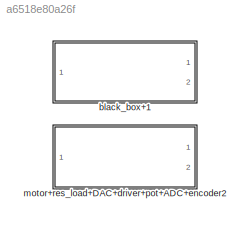
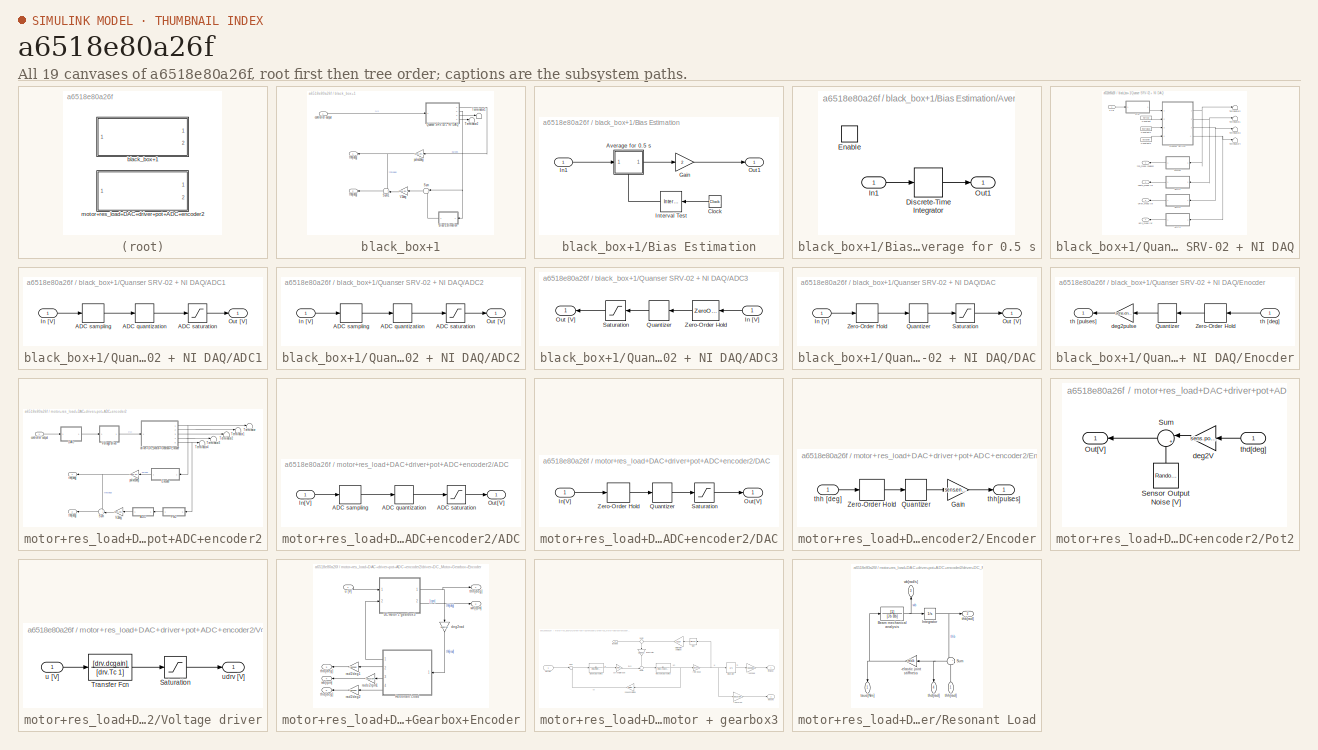
[diagram: thumbnail index - all 19 canvases of the model, root first then tree order]
MODEL slx_a6518e80a26f
KIND model
CONFIG AbsTol = auto
CONFIG EnableMultiTasking = off
CONFIG FixedStep = auto
CONFIG MaxStep = auto
CONFIG MinStep = auto
CONFIG RelTol = 1e-3
CONFIG SampleTimeConstraint = Unconstrained
CONFIG SolverName = VariableStepAuto
CONFIG StartTime = 0.0
CONFIG StopTime = 10.0
BLOCK [SubSystem] black_box+1
  Ports = [1, 2]
  RequestExecContextInheritance = off
BLOCK [SubSystem] black_box+1/Bias Estimation
  NameLocation = top
  Ports = [1, 1]
  RequestExecContextInheritance = off
BLOCK [SubSystem] black_box+1/Bias Estimation/Average for 0.5 s
  NameLocation = top
  Ports = [1, 1, 1]
  RequestExecContextInheritance = off
BLOCK [DiscreteIntegrator] black_box+1/Bias Estimation/Average for 0.5 s/Discrete-Time Integrator
  ICPrevOutput = DiscIntNeverNeededParam
  ICPrevScaledInput = DiscIntNeverNeededParam
  InitialConditionSetting = Auto
  Ports = [1, 1]
  SampleTime = Ts
BLOCK [EnablePort] black_box+1/Bias Estimation/Average for 0.5 s/Enable
  Ports = []
BLOCK [Inport] black_box+1/Bias Estimation/Average for 0.5 s/In1
BLOCK [Outport] black_box+1/Bias Estimation/Average for 0.5 s/Out1
BLOCK [Clock] black_box+1/Bias Estimation/Clock
  NameLocation = top
BLOCK [Gain] black_box+1/Bias Estimation/Gain
  Gain = 2
BLOCK [Inport] black_box+1/Bias Estimation/In1
BLOCK [Reference] black_box+1/Bias Estimation/Interval Test  REF=simulink/Logic and Bit
Operations/Interval Test
  NameLocation = top
  Ports = [1, 1]
  SourceBlock = simulink/Logic and Bit\nOperations/Interval Test
  SourceProductBaseCode = SL
  SourceType = Interval Test
BLOCK [Outport] black_box+1/Bias Estimation/Out1
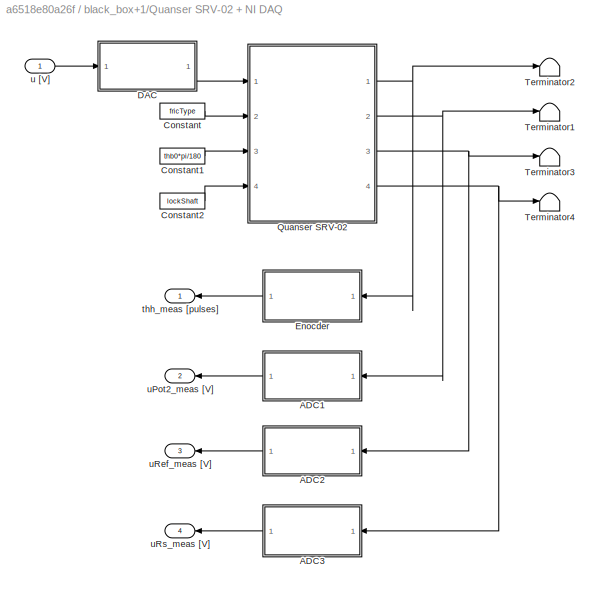
BLOCK [SubSystem] black_box+1/Quanser SRV-02 + NI DAQ
  Ports = [1, 4]
  RequestExecContextInheritance = off
BLOCK [SubSystem] black_box+1/Quanser SRV-02 + NI DAQ/ADC1
  Ports = [1, 1]
  RequestExecContextInheritance = off
BLOCK [Quantizer] black_box+1/Quanser SRV-02 + NI DAQ/ADC1/ADC quantization
  QuantizationInterval = daq.adc.q
BLOCK [ZeroOrderHold] black_box+1/Quanser SRV-02 + NI DAQ/ADC1/ADC sampling
  SampleTime = Ts
BLOCK [Saturate] black_box+1/Quanser SRV-02 + NI DAQ/ADC1/ADC saturation
  LowerLimit = -daq.adc.fs
  UpperLimit = daq.adc.fs
BLOCK [Inport] black_box+1/Quanser SRV-02 + NI DAQ/ADC1/In [V]
BLOCK [Outport] black_box+1/Quanser SRV-02 + NI DAQ/ADC1/Out [V]
BLOCK [SubSystem] black_box+1/Quanser SRV-02 + NI DAQ/ADC2
  Ports = [1, 1]
  RequestExecContextInheritance = off
BLOCK [Quantizer] black_box+1/Quanser SRV-02 + NI DAQ/ADC2/ADC quantization
  QuantizationInterval = daq.adc.q
BLOCK [ZeroOrderHold] black_box+1/Quanser SRV-02 + NI DAQ/ADC2/ADC sampling
  SampleTime = Ts
BLOCK [Saturate] black_box+1/Quanser SRV-02 + NI DAQ/ADC2/ADC saturation
  LowerLimit = -daq.adc.fs
  UpperLimit = daq.adc.fs
BLOCK [Inport] black_box+1/Quanser SRV-02 + NI DAQ/ADC2/In [V]
BLOCK [Outport] black_box+1/Quanser SRV-02 + NI DAQ/ADC2/Out [V]
BLOCK [SubSystem] black_box+1/Quanser SRV-02 + NI DAQ/ADC3
  Ports = [1, 1]
  RequestExecContextInheritance = off
BLOCK [Inport] black_box+1/Quanser SRV-02 + NI DAQ/ADC3/In [V]
BLOCK [Outport] black_box+1/Quanser SRV-02 + NI DAQ/ADC3/Out [V]
BLOCK [Quantizer] black_box+1/Quanser SRV-02 + NI DAQ/ADC3/Quantizer
  QuantizationInterval = daq.adc.q
BLOCK [Saturate] black_box+1/Quanser SRV-02 + NI DAQ/ADC3/Saturation
  LowerLimit = -daq.adc.fs
  UpperLimit = daq.adc.fs
BLOCK [ZeroOrderHold] black_box+1/Quanser SRV-02 + NI DAQ/ADC3/Zero-Order Hold
  SampleTime = Ts
BLOCK [Constant] black_box+1/Quanser SRV-02 + NI DAQ/Constant
  Value = fricType
BLOCK [Constant] black_box+1/Quanser SRV-02 + NI DAQ/Constant1
  SampleTime = Inf
  Value = thb0*pi/180
BLOCK [Constant] black_box+1/Quanser SRV-02 + NI DAQ/Constant2
  SampleTime = Inf
  Value = lockShaft
BLOCK [SubSystem] black_box+1/Quanser SRV-02 + NI DAQ/DAC
  Ports = [1, 1]
  RequestExecContextInheritance = off
BLOCK [Inport] black_box+1/Quanser SRV-02 + NI DAQ/DAC/In [V]
BLOCK [Outport] black_box+1/Quanser SRV-02 + NI DAQ/DAC/Out [V]
BLOCK [Quantizer] black_box+1/Quanser SRV-02 + NI DAQ/DAC/Quantizer
  QuantizationInterval = daq.dac.q
BLOCK [Saturate] black_box+1/Quanser SRV-02 + NI DAQ/DAC/Saturation
  LowerLimit = -daq.dac.fs
  UpperLimit = daq.dac.fs
BLOCK [ZeroOrderHold] black_box+1/Quanser SRV-02 + NI DAQ/DAC/Zero-Order Hold
  SampleTime = Ts
BLOCK [SubSystem] black_box+1/Quanser SRV-02 + NI DAQ/Enocder
  Ports = [1, 1]
  RequestExecContextInheritance = off
BLOCK [Quantizer] black_box+1/Quanser SRV-02 + NI DAQ/Enocder/Quantizer
  QuantizationInterval = sens.enc.pulse2deg
BLOCK [ZeroOrderHold] black_box+1/Quanser SRV-02 + NI DAQ/Enocder/Zero-Order Hold
  SampleTime = Ts
BLOCK [Gain] black_box+1/Quanser SRV-02 + NI DAQ/Enocder/deg2pulse
  Gain = sens.enc.deg2pulse
BLOCK [Inport] black_box+1/Quanser SRV-02 + NI DAQ/Enocder/th [deg]
BLOCK [Outport] black_box+1/Quanser SRV-02 + NI DAQ/Enocder/th [pulses]
BLOCK [ModelReference] black_box+1/Quanser SRV-02 + NI DAQ/Quanser SRV-02
  CopyOfModelProtected = on
  ModelNameDialog = SRV02RL_win64.slxp
  ModelReferenceVersion = 1.76
  Ports = [4, 4]
BLOCK [Terminator] black_box+1/Quanser SRV-02 + NI DAQ/Terminator1
BLOCK [Terminator] black_box+1/Quanser SRV-02 + NI DAQ/Terminator2
BLOCK [Terminator] black_box+1/Quanser SRV-02 + NI DAQ/Terminator3
BLOCK [Terminator] black_box+1/Quanser SRV-02 + NI DAQ/Terminator4
BLOCK [Outport] black_box+1/Quanser SRV-02 + NI DAQ/thh_meas [pulses]
BLOCK [Inport] black_box+1/Quanser SRV-02 + NI DAQ/u [V]
BLOCK [Outport] black_box+1/Quanser SRV-02 + NI DAQ/uPot2_meas [V]
  Port = 2
BLOCK [Outport] black_box+1/Quanser SRV-02 + NI DAQ/uRef_meas [V]
  Port = 3
BLOCK [Outport] black_box+1/Quanser SRV-02 + NI DAQ/uRs_meas [V]
  Port = 4
BLOCK [Sum] black_box+1/Sum
  Inputs = |+-
  NameLocation = top
  Ports = [2, 1]
BLOCK [Sum] black_box+1/Sum1
  Inputs = ++|
  NameLocation = top
  Ports = [2, 1]
BLOCK [Terminator] black_box+1/Terminator1
BLOCK [Terminator] black_box+1/Terminator2
BLOCK [Gain] black_box+1/V2deg
  Gain = sens.pot2.V2deg
  NameLocation = top
BLOCK [Inport] black_box+1/controller output
BLOCK [Gain] black_box+1/pulse2deg
  Gain = sens.enc.pulse2deg
  NameLocation = top
BLOCK [Outport] black_box+1/thb[deg]
  NameLocation = top
  Port = 2
BLOCK [Outport] black_box+1/thh[deg]
  NameLocation = top
BLOCK [SubSystem] motor+res_load+DAC+driver+pot+ADC+encoder2
  Ports = [1, 2]
  RequestExecContextInheritance = off
BLOCK [SubSystem] motor+res_load+DAC+driver+pot+ADC+encoder2/ADC
  NameLocation = top
  Ports = [1, 1]
  RequestExecContextInheritance = off
BLOCK [Quantizer] motor+res_load+DAC+driver+pot+ADC+encoder2/ADC/ADC quantization
  QuantizationInterval = daq.adc.q
BLOCK [ZeroOrderHold] motor+res_load+DAC+driver+pot+ADC+encoder2/ADC/ADC sampling
  SampleTime = Ts
BLOCK [Saturate] motor+res_load+DAC+driver+pot+ADC+encoder2/ADC/ADC saturation
  LowerLimit = -daq.adc.fs
  UpperLimit = daq.adc.fs
BLOCK [Inport] motor+res_load+DAC+driver+pot+ADC+encoder2/ADC/In[V]
  NameLocation = top
BLOCK [Outport] motor+res_load+DAC+driver+pot+ADC+encoder2/ADC/Out[V]
BLOCK [SubSystem] motor+res_load+DAC+driver+pot+ADC+encoder2/DAC
  Ports = [1, 1]
  RequestExecContextInheritance = off
BLOCK [Inport] motor+res_load+DAC+driver+pot+ADC+encoder2/DAC/In[V]
BLOCK [Outport] motor+res_load+DAC+driver+pot+ADC+encoder2/DAC/Out[V]
BLOCK [Quantizer] motor+res_load+DAC+driver+pot+ADC+encoder2/DAC/Quantizer
  QuantizationInterval = daq.dac.q
BLOCK [Saturate] motor+res_load+DAC+driver+pot+ADC+encoder2/DAC/Saturation
  LinearizeAsGain = off
  LowerLimit = -daq.dac.fs
  UpperLimit = daq.dac.fs
BLOCK [ZeroOrderHold] motor+res_load+DAC+driver+pot+ADC+encoder2/DAC/Zero-Order Hold
  SampleTime = Ts
BLOCK [SubSystem] motor+res_load+DAC+driver+pot+ADC+encoder2/Encoder
  Ports = [1, 1]
  RequestExecContextInheritance = off
BLOCK [Gain] motor+res_load+DAC+driver+pot+ADC+encoder2/Encoder/Gain
  Gain = sens.enc.ppr/360
BLOCK [Quantizer] motor+res_load+DAC+driver+pot+ADC+encoder2/Encoder/Quantizer
  QuantizationInterval = sens.enc.pulse2deg
BLOCK [ZeroOrderHold] motor+res_load+DAC+driver+pot+ADC+encoder2/Encoder/Zero-Order Hold
  SampleTime = Ts
BLOCK [Inport] motor+res_load+DAC+driver+pot+ADC+encoder2/Encoder/thh [deg] 
BLOCK [Outport] motor+res_load+DAC+driver+pot+ADC+encoder2/Encoder/thh[pulses]
BLOCK [SubSystem] motor+res_load+DAC+driver+pot+ADC+encoder2/Pot2
  NameLocation = top
  Ports = [1, 1]
  RequestExecContextInheritance = off
BLOCK [Outport] motor+res_load+DAC+driver+pot+ADC+encoder2/Pot2/Out[V]
BLOCK [RandomNumber] motor+res_load+DAC+driver+pot+ADC+encoder2/Pot2/Sensor Output Noise [V]
  NameLocation = right
  SampleTime = Ts
  Variance = sens.pot2.noise.var
BLOCK [Sum] motor+res_load+DAC+driver+pot+ADC+encoder2/Pot2/Sum
  Inputs = |++
  NameLocation = top
  Ports = [2, 1]
BLOCK [Gain] motor+res_load+DAC+driver+pot+ADC+encoder2/Pot2/deg2V
  Gain = sens.pot2.deg2V
  NameLocation = top
BLOCK [Inport] motor+res_load+DAC+driver+pot+ADC+encoder2/Pot2/thd[deg]
  NameLocation = top
BLOCK [Sum] motor+res_load+DAC+driver+pot+ADC+encoder2/Sum
  Inputs = ++|
  NameLocation = top
  Ports = [2, 1]
BLOCK [Terminator] motor+res_load+DAC+driver+pot+ADC+encoder2/Terminator
BLOCK [Terminator] motor+res_load+DAC+driver+pot+ADC+encoder2/Terminator1
BLOCK [Terminator] motor+res_load+DAC+driver+pot+ADC+encoder2/Terminator2
BLOCK [Terminator] motor+res_load+DAC+driver+pot+ADC+encoder2/Terminator3
BLOCK [Terminator] motor+res_load+DAC+driver+pot+ADC+encoder2/Terminator4
BLOCK [Gain] motor+res_load+DAC+driver+pot+ADC+encoder2/V2deg
  Gain = sens.pot2.V2deg
  NameLocation = top
BLOCK [SubSystem] motor+res_load+DAC+driver+pot+ADC+encoder2/Voltage driver
  Ports = [1, 1]
  RequestExecContextInheritance = off
BLOCK [Saturate] motor+res_load+DAC+driver+pot+ADC+encoder2/Voltage driver/Saturation
  LinearizeAsGain = off
  LowerLimit = -drv.outmax
  UpperLimit = drv.outmax
BLOCK [TransferFcn] motor+res_load+DAC+driver+pot+ADC+encoder2/Voltage driver/Transfer Fcn
  Denominator = [drv.Tc 1]
  Numerator = [drv.dcgain]
BLOCK [Inport] motor+res_load+DAC+driver+pot+ADC+encoder2/Voltage driver/u [V]
BLOCK [Outport] motor+res_load+DAC+driver+pot+ADC+encoder2/Voltage driver/udrv [V]
BLOCK [Inport] motor+res_load+DAC+driver+pot+ADC+encoder2/controller output
BLOCK [SubSystem] motor+res_load+DAC+driver+pot+ADC+encoder2/driver+DC_Motor+Gearbox+Encoder
  Ports = [1, 5]
  RequestExecContextInheritance = off
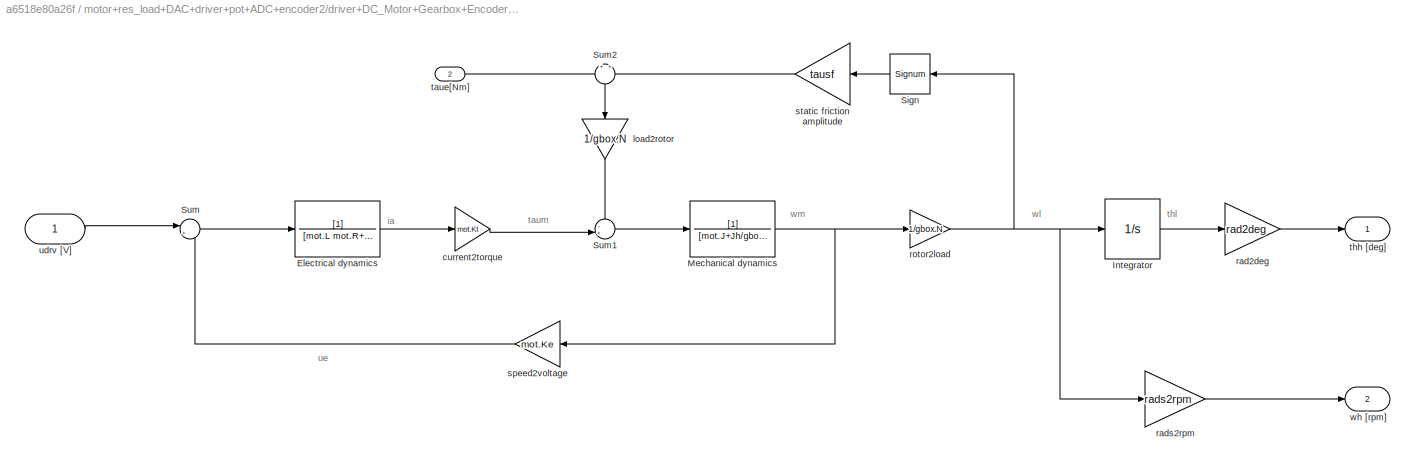
BLOCK [SubSystem] motor+res_load+DAC+driver+pot+ADC+encoder2/driver+DC_Motor+Gearbox+Encoder/DC motor + gearbox3
  Ports = [2, 2]
  RequestExecContextInheritance = off
BLOCK [TransferFcn] motor+res_load+DAC+driver+pot+ADC+encoder2/driver+DC_Motor+Gearbox+Encoder/DC motor + gearbox3/Electrical dynamics
  Denominator = [mot.L mot.R+sens.curr.Rs]
BLOCK [Integrator] motor+res_load+DAC+driver+pot+ADC+encoder2/driver+DC_Motor+Gearbox+Encoder/DC motor + gearbox3/Integrator
  Ports = [1, 1]
BLOCK [TransferFcn] motor+res_load+DAC+driver+pot+ADC+encoder2/driver+DC_Motor+Gearbox+Encoder/DC motor + gearbox3/Mechanical dynamics
  Denominator = [mot.J+Jh/gbox.N^2 Beq]
BLOCK [Signum] motor+res_load+DAC+driver+pot+ADC+encoder2/driver+DC_Motor+Gearbox+Encoder/DC motor + gearbox3/Sign
  ZeroCross = off
BLOCK [Sum] motor+res_load+DAC+driver+pot+ADC+encoder2/driver+DC_Motor+Gearbox+Encoder/DC motor + gearbox3/Sum
  Inputs = |+-
  Ports = [2, 1]
BLOCK [Sum] motor+res_load+DAC+driver+pot+ADC+encoder2/driver+DC_Motor+Gearbox+Encoder/DC motor + gearbox3/Sum1
  Inputs = -+|
  Ports = [2, 1]
BLOCK [Sum] motor+res_load+DAC+driver+pot+ADC+encoder2/driver+DC_Motor+Gearbox+Encoder/DC motor + gearbox3/Sum2
  Inputs = +|+
  NameLocation = left
  Ports = [2, 1]
BLOCK [Gain] motor+res_load+DAC+driver+pot+ADC+encoder2/driver+DC_Motor+Gearbox+Encoder/DC motor + gearbox3/current2torque
  Gain = mot.Kt
BLOCK [Gain] motor+res_load+DAC+driver+pot+ADC+encoder2/driver+DC_Motor+Gearbox+Encoder/DC motor + gearbox3/load2rotor
  Gain = 1/gbox.N
  NameLocation = left
BLOCK [Gain] motor+res_load+DAC+driver+pot+ADC+encoder2/driver+DC_Motor+Gearbox+Encoder/DC motor + gearbox3/rad2deg
  Gain = rad2deg
BLOCK [Gain] motor+res_load+DAC+driver+pot+ADC+encoder2/driver+DC_Motor+Gearbox+Encoder/DC motor + gearbox3/rads2rpm
  Gain = rads2rpm
BLOCK [Gain] motor+res_load+DAC+driver+pot+ADC+encoder2/driver+DC_Motor+Gearbox+Encoder/DC motor + gearbox3/rotor2load
  Gain = 1/gbox.N
BLOCK [Gain] motor+res_load+DAC+driver+pot+ADC+encoder2/driver+DC_Motor+Gearbox+Encoder/DC motor + gearbox3/speed2voltage
  Gain = mot.Ke
BLOCK [Gain] motor+res_load+DAC+driver+pot+ADC+encoder2/driver+DC_Motor+Gearbox+Encoder/DC motor + gearbox3/static friction amplitude
  Gain = tausf
BLOCK [Inport] motor+res_load+DAC+driver+pot+ADC+encoder2/driver+DC_Motor+Gearbox+Encoder/DC motor + gearbox3/taue[Nm]
  Port = 2
BLOCK [Outport] motor+res_load+DAC+driver+pot+ADC+encoder2/driver+DC_Motor+Gearbox+Encoder/DC motor + gearbox3/thh [deg] 
BLOCK [Inport] motor+res_load+DAC+driver+pot+ADC+encoder2/driver+DC_Motor+Gearbox+Encoder/DC motor + gearbox3/udrv [V]
BLOCK [Outport] motor+res_load+DAC+driver+pot+ADC+encoder2/driver+DC_Motor+Gearbox+Encoder/DC motor + gearbox3/wh [rpm]
  Port = 2
BLOCK [SubSystem] motor+res_load+DAC+driver+pot+ADC+encoder2/driver+DC_Motor+Gearbox+Encoder/Resonant Load
  NameLocation = top
  Ports = [1, 4]
  RequestExecContextInheritance = off
BLOCK [Gain] motor+res_load+DAC+driver+pot+ADC+encoder2/driver+DC_Motor+Gearbox+Encoder/Resonant Load/-elastic joint stiffness
  Gain = -mld.k
  NameLocation = top
BLOCK [TransferFcn] motor+res_load+DAC+driver+pot+ADC+encoder2/driver+DC_Motor+Gearbox+Encoder/Resonant Load/Beam mechanical analysis
  Denominator = [Jb Bb]
BLOCK [Integrator] motor+res_load+DAC+driver+pot+ADC+encoder2/driver+DC_Motor+Gearbox+Encoder/Resonant Load/Integrator
  Ports = [1, 1]
BLOCK [Sum] motor+res_load+DAC+driver+pot+ADC+encoder2/driver+DC_Motor+Gearbox+Encoder/Resonant Load/Sum
  Inputs = +|-
  NameLocation = top
  Ports = [2, 1]
BLOCK [Outport] motor+res_load+DAC+driver+pot+ADC+encoder2/driver+DC_Motor+Gearbox+Encoder/Resonant Load/taue[Nm]
  NameLocation = left
BLOCK [Outport] motor+res_load+DAC+driver+pot+ADC+encoder2/driver+DC_Motor+Gearbox+Encoder/Resonant Load/thb[rad]
  Port = 2
BLOCK [Outport] motor+res_load+DAC+driver+pot+ADC+encoder2/driver+DC_Motor+Gearbox+Encoder/Resonant Load/thd[rad]
  NameLocation = left
  Port = 4
BLOCK [Inport] motor+res_load+DAC+driver+pot+ADC+encoder2/driver+DC_Motor+Gearbox+Encoder/Resonant Load/thh[rad]
  NameLocation = right
BLOCK [Outport] motor+res_load+DAC+driver+pot+ADC+encoder2/driver+DC_Motor+Gearbox+Encoder/Resonant Load/wb[rad//s]
  NameLocation = right
  Port = 3
BLOCK [Gain] motor+res_load+DAC+driver+pot+ADC+encoder2/driver+DC_Motor+Gearbox+Encoder/deg2rad
  Gain = deg2rad
  NameLocation = left
BLOCK [Gain] motor+res_load+DAC+driver+pot+ADC+encoder2/driver+DC_Motor+Gearbox+Encoder/rad2deg1
  Gain = rad2deg
  NameLocation = top
BLOCK [Gain] motor+res_load+DAC+driver+pot+ADC+encoder2/driver+DC_Motor+Gearbox+Encoder/rad2deg2
  Gain = rad2deg
  NameLocation = top
BLOCK [Gain] motor+res_load+DAC+driver+pot+ADC+encoder2/driver+DC_Motor+Gearbox+Encoder/rads2rpm1
  Gain = rads2rpm
  NameLocation = top
BLOCK [Outport] motor+res_load+DAC+driver+pot+ADC+encoder2/driver+DC_Motor+Gearbox+Encoder/thb[deg]
  NameLocation = top
  Port = 3
BLOCK [Outport] motor+res_load+DAC+driver+pot+ADC+encoder2/driver+DC_Motor+Gearbox+Encoder/thd[deg]
  NameLocation = top
  Port = 5
BLOCK [Outport] motor+res_load+DAC+driver+pot+ADC+encoder2/driver+DC_Motor+Gearbox+Encoder/thh[deg]
BLOCK [Inport] motor+res_load+DAC+driver+pot+ADC+encoder2/driver+DC_Motor+Gearbox+Encoder/u [V]
BLOCK [Outport] motor+res_load+DAC+driver+pot+ADC+encoder2/driver+DC_Motor+Gearbox+Encoder/wb[rpm]
  NameLocation = top
  Port = 4
BLOCK [Outport] motor+res_load+DAC+driver+pot+ADC+encoder2/driver+DC_Motor+Gearbox+Encoder/wh[rpm]
  Port = 2
BLOCK [Gain] motor+res_load+DAC+driver+pot+ADC+encoder2/pulse2deg
  Gain = sens.enc.pulse2deg
  NameLocation = top
BLOCK [Outport] motor+res_load+DAC+driver+pot+ADC+encoder2/thb[deg]
  NameLocation = top
  Port = 2
BLOCK [Outport] motor+res_load+DAC+driver+pot+ADC+encoder2/thh[deg]
  NameLocation = top
ANNOTATION motor+res_load+DAC+driver+pot+ADC+encoder2/driver+DC_Motor+Gearbox+Encoder/DC motor + gearbox3: ia
ANNOTATION motor+res_load+DAC+driver+pot+ADC+encoder2/driver+DC_Motor+Gearbox+Encoder/DC motor + gearbox3: taum
ANNOTATION motor+res_load+DAC+driver+pot+ADC+encoder2/driver+DC_Motor+Gearbox+Encoder/DC motor + gearbox3: thl
ANNOTATION motor+res_load+DAC+driver+pot+ADC+encoder2/driver+DC_Motor+Gearbox+Encoder/DC motor + gearbox3: ue
ANNOTATION motor+res_load+DAC+driver+pot+ADC+encoder2/driver+DC_Motor+Gearbox+Encoder/DC motor + gearbox3: wl
ANNOTATION motor+res_load+DAC+driver+pot+ADC+encoder2/driver+DC_Motor+Gearbox+Encoder/DC motor + gearbox3: wm
LINE black_box+1/Bias Estimation/Average for 0.5 s/Discrete-Time Integrator:1 -> black_box+1/Bias Estimation/Average for 0.5 s/Out1:1
LINE black_box+1/Bias Estimation/Average for 0.5 s/In1:1 -> black_box+1/Bias Estimation/Average for 0.5 s/Discrete-Time Integrator:1
LINE black_box+1/Bias Estimation/Average for 0.5 s:1 -> black_box+1/Bias Estimation/Gain:1
LINE black_box+1/Bias Estimation/Clock:1 -> black_box+1/Bias Estimation/Interval Test:1
LINE black_box+1/Bias Estimation/Gain:1 -> black_box+1/Bias Estimation/Out1:1
LINE black_box+1/Bias Estimation/In1:1 -> black_box+1/Bias Estimation/Average for 0.5 s:1
LINE black_box+1/Bias Estimation/Interval Test:1 -> black_box+1/Bias Estimation/Average for 0.5 s:enable
LINE black_box+1/Bias Estimation:1 -> black_box+1/Sum:2
LINE black_box+1/Quanser SRV-02 + NI DAQ/ADC1/ADC quantization:1 -> black_box+1/Quanser SRV-02 + NI DAQ/ADC1/ADC saturation:1
LINE black_box+1/Quanser SRV-02 + NI DAQ/ADC1/ADC sampling:1 -> black_box+1/Quanser SRV-02 + NI DAQ/ADC1/ADC quantization:1
LINE black_box+1/Quanser SRV-02 + NI DAQ/ADC1/ADC saturation:1 -> black_box+1/Quanser SRV-02 + NI DAQ/ADC1/Out [V]:1
LINE black_box+1/Quanser SRV-02 + NI DAQ/ADC1/In [V]:1 -> black_box+1/Quanser SRV-02 + NI DAQ/ADC1/ADC sampling:1
LINE black_box+1/Quanser SRV-02 + NI DAQ/ADC1:1 -> black_box+1/Quanser SRV-02 + NI DAQ/uPot2_meas [V]:1
LINE black_box+1/Quanser SRV-02 + NI DAQ/ADC2/ADC quantization:1 -> black_box+1/Quanser SRV-02 + NI DAQ/ADC2/ADC saturation:1
LINE black_box+1/Quanser SRV-02 + NI DAQ/ADC2/ADC sampling:1 -> black_box+1/Quanser SRV-02 + NI DAQ/ADC2/ADC quantization:1
LINE black_box+1/Quanser SRV-02 + NI DAQ/ADC2/ADC saturation:1 -> black_box+1/Quanser SRV-02 + NI DAQ/ADC2/Out [V]:1
LINE black_box+1/Quanser SRV-02 + NI DAQ/ADC2/In [V]:1 -> black_box+1/Quanser SRV-02 + NI DAQ/ADC2/ADC sampling:1
LINE black_box+1/Quanser SRV-02 + NI DAQ/ADC2:1 -> black_box+1/Quanser SRV-02 + NI DAQ/uRef_meas [V]:1
LINE black_box+1/Quanser SRV-02 + NI DAQ/ADC3/In [V]:1 -> black_box+1/Quanser SRV-02 + NI DAQ/ADC3/Zero-Order Hold:1
LINE black_box+1/Quanser SRV-02 + NI DAQ/ADC3/Quantizer:1 -> black_box+1/Quanser SRV-02 + NI DAQ/ADC3/Saturation:1
LINE black_box+1/Quanser SRV-02 + NI DAQ/ADC3/Saturation:1 -> black_box+1/Quanser SRV-02 + NI DAQ/ADC3/Out [V]:1
LINE black_box+1/Quanser SRV-02 + NI DAQ/ADC3/Zero-Order Hold:1 -> black_box+1/Quanser SRV-02 + NI DAQ/ADC3/Quantizer:1
LINE black_box+1/Quanser SRV-02 + NI DAQ/ADC3:1 -> black_box+1/Quanser SRV-02 + NI DAQ/uRs_meas [V]:1
LINE black_box+1/Quanser SRV-02 + NI DAQ/Constant1:1 -> black_box+1/Quanser SRV-02 + NI DAQ/Quanser SRV-02:3
LINE black_box+1/Quanser SRV-02 + NI DAQ/Constant2:1 -> black_box+1/Quanser SRV-02 + NI DAQ/Quanser SRV-02:4
LINE black_box+1/Quanser SRV-02 + NI DAQ/Constant:1 -> black_box+1/Quanser SRV-02 + NI DAQ/Quanser SRV-02:2
LINE black_box+1/Quanser SRV-02 + NI DAQ/DAC/In [V]:1 -> black_box+1/Quanser SRV-02 + NI DAQ/DAC/Zero-Order Hold:1
LINE black_box+1/Quanser SRV-02 + NI DAQ/DAC/Quantizer:1 -> black_box+1/Quanser SRV-02 + NI DAQ/DAC/Saturation:1
LINE black_box+1/Quanser SRV-02 + NI DAQ/DAC/Saturation:1 -> black_box+1/Quanser SRV-02 + NI DAQ/DAC/Out [V]:1
LINE black_box+1/Quanser SRV-02 + NI DAQ/DAC/Zero-Order Hold:1 -> black_box+1/Quanser SRV-02 + NI DAQ/DAC/Quantizer:1
LINE black_box+1/Quanser SRV-02 + NI DAQ/DAC:1 -> black_box+1/Quanser SRV-02 + NI DAQ/Quanser SRV-02:1
LINE black_box+1/Quanser SRV-02 + NI DAQ/Enocder/Quantizer:1 -> black_box+1/Quanser SRV-02 + NI DAQ/Enocder/deg2pulse:1
LINE black_box+1/Quanser SRV-02 + NI DAQ/Enocder/Zero-Order Hold:1 -> black_box+1/Quanser SRV-02 + NI DAQ/Enocder/Quantizer:1
LINE black_box+1/Quanser SRV-02 + NI DAQ/Enocder/deg2pulse:1 -> black_box+1/Quanser SRV-02 + NI DAQ/Enocder/th [pulses]:1
LINE black_box+1/Quanser SRV-02 + NI DAQ/Enocder/th [deg]:1 -> black_box+1/Quanser SRV-02 + NI DAQ/Enocder/Zero-Order Hold:1
LINE black_box+1/Quanser SRV-02 + NI DAQ/Enocder:1 -> black_box+1/Quanser SRV-02 + NI DAQ/thh_meas [pulses]:1
NET black_box+1/Quanser SRV-02 + NI DAQ/Quanser SRV-02:1 -> black_box+1/Quanser SRV-02 + NI DAQ/Enocder:1, black_box+1/Quanser SRV-02 + NI DAQ/Terminator2:1
NET black_box+1/Quanser SRV-02 + NI DAQ/Quanser SRV-02:2 -> black_box+1/Quanser SRV-02 + NI DAQ/ADC1:1, black_box+1/Quanser SRV-02 + NI DAQ/Terminator1:1
NET black_box+1/Quanser SRV-02 + NI DAQ/Quanser SRV-02:3 -> black_box+1/Quanser SRV-02 + NI DAQ/ADC2:1, black_box+1/Quanser SRV-02 + NI DAQ/Terminator3:1
NET black_box+1/Quanser SRV-02 + NI DAQ/Quanser SRV-02:4 -> black_box+1/Quanser SRV-02 + NI DAQ/ADC3:1, black_box+1/Quanser SRV-02 + NI DAQ/Terminator4:1
LINE black_box+1/Quanser SRV-02 + NI DAQ/u [V]:1 -> black_box+1/Quanser SRV-02 + NI DAQ/DAC:1
LINE black_box+1/Quanser SRV-02 + NI DAQ:1 -> black_box+1/pulse2deg:1
NET black_box+1/Quanser SRV-02 + NI DAQ:2 -> black_box+1/Bias Estimation:1, black_box+1/Sum:1
LINE black_box+1/Quanser SRV-02 + NI DAQ:3 -> black_box+1/Terminator1:1
LINE black_box+1/Quanser SRV-02 + NI DAQ:4 -> black_box+1/Terminator2:1
LINE black_box+1/Sum1:1 -> black_box+1/thb[deg]:1
LINE black_box+1/Sum:1 -> black_box+1/V2deg:1
LINE black_box+1/V2deg:1 -> black_box+1/Sum1:2
LINE black_box+1/controller output:1 -> black_box+1/Quanser SRV-02 + NI DAQ:1
NET black_box+1/pulse2deg:1 -> black_box+1/Sum1:1, black_box+1/thh[deg]:1
LINE motor+res_load+DAC+driver+pot+ADC+encoder2/ADC/ADC quantization:1 -> motor+res_load+DAC+driver+pot+ADC+encoder2/ADC/ADC saturation:1
LINE motor+res_load+DAC+driver+pot+ADC+encoder2/ADC/ADC sampling:1 -> motor+res_load+DAC+driver+pot+ADC+encoder2/ADC/ADC quantization:1
LINE motor+res_load+DAC+driver+pot+ADC+encoder2/ADC/ADC saturation:1 -> motor+res_load+DAC+driver+pot+ADC+encoder2/ADC/Out[V]:1
LINE motor+res_load+DAC+driver+pot+ADC+encoder2/ADC/In[V]:1 -> motor+res_load+DAC+driver+pot+ADC+encoder2/ADC/ADC sampling:1
LINE motor+res_load+DAC+driver+pot+ADC+encoder2/ADC:1 -> motor+res_load+DAC+driver+pot+ADC+encoder2/V2deg:1
LINE motor+res_load+DAC+driver+pot+ADC+encoder2/DAC/In[V]:1 -> motor+res_load+DAC+driver+pot+ADC+encoder2/DAC/Zero-Order Hold:1
LINE motor+res_load+DAC+driver+pot+ADC+encoder2/DAC/Quantizer:1 -> motor+res_load+DAC+driver+pot+ADC+encoder2/DAC/Saturation:1
LINE motor+res_load+DAC+driver+pot+ADC+encoder2/DAC/Saturation:1 -> motor+res_load+DAC+driver+pot+ADC+encoder2/DAC/Out[V]:1
LINE motor+res_load+DAC+driver+pot+ADC+encoder2/DAC/Zero-Order Hold:1 -> motor+res_load+DAC+driver+pot+ADC+encoder2/DAC/Quantizer:1
LINE motor+res_load+DAC+driver+pot+ADC+encoder2/DAC:1 -> motor+res_load+DAC+driver+pot+ADC+encoder2/Voltage driver:1
LINE motor+res_load+DAC+driver+pot+ADC+encoder2/Encoder/Gain:1 -> motor+res_load+DAC+driver+pot+ADC+encoder2/Encoder/thh[pulses]:1
LINE motor+res_load+DAC+driver+pot+ADC+encoder2/Encoder/Quantizer:1 -> motor+res_load+DAC+driver+pot+ADC+encoder2/Encoder/Gain:1
LINE motor+res_load+DAC+driver+pot+ADC+encoder2/Encoder/Zero-Order Hold:1 -> motor+res_load+DAC+driver+pot+ADC+encoder2/Encoder/Quantizer:1
LINE motor+res_load+DAC+driver+pot+ADC+encoder2/Encoder/thh [deg] :1 -> motor+res_load+DAC+driver+pot+ADC+encoder2/Encoder/Zero-Order Hold:1
LINE motor+res_load+DAC+driver+pot+ADC+encoder2/Encoder:1 -> motor+res_load+DAC+driver+pot+ADC+encoder2/pulse2deg:1
LINE motor+res_load+DAC+driver+pot+ADC+encoder2/Pot2/Sensor Output Noise [V]:1 -> motor+res_load+DAC+driver+pot+ADC+encoder2/Pot2/Sum:2
LINE motor+res_load+DAC+driver+pot+ADC+encoder2/Pot2/Sum:1 -> motor+res_load+DAC+driver+pot+ADC+encoder2/Pot2/Out[V]:1
LINE motor+res_load+DAC+driver+pot+ADC+encoder2/Pot2/deg2V:1 -> motor+res_load+DAC+driver+pot+ADC+encoder2/Pot2/Sum:1
LINE motor+res_load+DAC+driver+pot+ADC+encoder2/Pot2/thd[deg]:1 -> motor+res_load+DAC+driver+pot+ADC+encoder2/Pot2/deg2V:1
LINE motor+res_load+DAC+driver+pot+ADC+encoder2/Pot2:1 -> motor+res_load+DAC+driver+pot+ADC+encoder2/ADC:1
LINE motor+res_load+DAC+driver+pot+ADC+encoder2/Sum:1 -> motor+res_load+DAC+driver+pot+ADC+encoder2/thb[deg]:1
LINE motor+res_load+DAC+driver+pot+ADC+encoder2/V2deg:1 -> motor+res_load+DAC+driver+pot+ADC+encoder2/Sum:2
LINE motor+res_load+DAC+driver+pot+ADC+encoder2/Voltage driver/Saturation:1 -> motor+res_load+DAC+driver+pot+ADC+encoder2/Voltage driver/udrv [V]:1
LINE motor+res_load+DAC+driver+pot+ADC+encoder2/Voltage driver/Transfer Fcn:1 -> motor+res_load+DAC+driver+pot+ADC+encoder2/Voltage driver/Saturation:1
LINE motor+res_load+DAC+driver+pot+ADC+encoder2/Voltage driver/u [V]:1 -> motor+res_load+DAC+driver+pot+ADC+encoder2/Voltage driver/Transfer Fcn:1
LINE motor+res_load+DAC+driver+pot+ADC+encoder2/Voltage driver:1 -> motor+res_load+DAC+driver+pot+ADC+encoder2/driver+DC_Motor+Gearbox+Encoder:1
LINE motor+res_load+DAC+driver+pot+ADC+encoder2/controller output:1 -> motor+res_load+DAC+driver+pot+ADC+encoder2/DAC:1
LINE motor+res_load+DAC+driver+pot+ADC+encoder2/driver+DC_Motor+Gearbox+Encoder/DC motor + gearbox3/Electrical dynamics:1 -> motor+res_load+DAC+driver+pot+ADC+encoder2/driver+DC_Motor+Gearbox+Encoder/DC motor + gearbox3/current2torque:1
LINE motor+res_load+DAC+driver+pot+ADC+encoder2/driver+DC_Motor+Gearbox+Encoder/DC motor + gearbox3/Integrator:1 -> motor+res_load+DAC+driver+pot+ADC+encoder2/driver+DC_Motor+Gearbox+Encoder/DC motor + gearbox3/rad2deg:1
NET motor+res_load+DAC+driver+pot+ADC+encoder2/driver+DC_Motor+Gearbox+Encoder/DC motor + gearbox3/Mechanical dynamics:1 -> motor+res_load+DAC+driver+pot+ADC+encoder2/driver+DC_Motor+Gearbox+Encoder/DC motor + gearbox3/rotor2load:1, motor+res_load+DAC+driver+pot+ADC+encoder2/driver+DC_Motor+Gearbox+Encoder/DC motor + gearbox3/speed2voltage:1
LINE motor+res_load+DAC+driver+pot+ADC+encoder2/driver+DC_Motor+Gearbox+Encoder/DC motor + gearbox3/Sign:1 -> motor+res_load+DAC+driver+pot+ADC+encoder2/driver+DC_Motor+Gearbox+Encoder/DC motor + gearbox3/static friction amplitude:1
LINE motor+res_load+DAC+driver+pot+ADC+encoder2/driver+DC_Motor+Gearbox+Encoder/DC motor + gearbox3/Sum1:1 -> motor+res_load+DAC+driver+pot+ADC+encoder2/driver+DC_Motor+Gearbox+Encoder/DC motor + gearbox3/Mechanical dynamics:1
LINE motor+res_load+DAC+driver+pot+ADC+encoder2/driver+DC_Motor+Gearbox+Encoder/DC motor + gearbox3/Sum2:1 -> motor+res_load+DAC+driver+pot+ADC+encoder2/driver+DC_Motor+Gearbox+Encoder/DC motor + gearbox3/load2rotor:1
LINE motor+res_load+DAC+driver+pot+ADC+encoder2/driver+DC_Motor+Gearbox+Encoder/DC motor + gearbox3/Sum:1 -> motor+res_load+DAC+driver+pot+ADC+encoder2/driver+DC_Motor+Gearbox+Encoder/DC motor + gearbox3/Electrical dynamics:1
LINE motor+res_load+DAC+driver+pot+ADC+encoder2/driver+DC_Motor+Gearbox+Encoder/DC motor + gearbox3/current2torque:1 -> motor+res_load+DAC+driver+pot+ADC+encoder2/driver+DC_Motor+Gearbox+Encoder/DC motor + gearbox3/Sum1:2
LINE motor+res_load+DAC+driver+pot+ADC+encoder2/driver+DC_Motor+Gearbox+Encoder/DC motor + gearbox3/load2rotor:1 -> motor+res_load+DAC+driver+pot+ADC+encoder2/driver+DC_Motor+Gearbox+Encoder/DC motor + gearbox3/Sum1:1
LINE motor+res_load+DAC+driver+pot+ADC+encoder2/driver+DC_Motor+Gearbox+Encoder/DC motor + gearbox3/rad2deg:1 -> motor+res_load+DAC+driver+pot+ADC+encoder2/driver+DC_Motor+Gearbox+Encoder/DC motor + gearbox3/thh [deg] :1
LINE motor+res_load+DAC+driver+pot+ADC+encoder2/driver+DC_Motor+Gearbox+Encoder/DC motor + gearbox3/rads2rpm:1 -> motor+res_load+DAC+driver+pot+ADC+encoder2/driver+DC_Motor+Gearbox+Encoder/DC motor + gearbox3/wh [rpm]:1
NET motor+res_load+DAC+driver+pot+ADC+encoder2/driver+DC_Motor+Gearbox+Encoder/DC motor + gearbox3/rotor2load:1 -> motor+res_load+DAC+driver+pot+ADC+encoder2/driver+DC_Motor+Gearbox+Encoder/DC motor + gearbox3/Integrator:1, motor+res_load+DAC+driver+pot+ADC+encoder2/driver+DC_Motor+Gearbox+Encoder/DC motor + gearbox3/Sign:1, motor+res_load+DAC+driver+pot+ADC+encoder2/driver+DC_Motor+Gearbox+Encoder/DC motor + gearbox3/rads2rpm:1
LINE motor+res_load+DAC+driver+pot+ADC+encoder2/driver+DC_Motor+Gearbox+Encoder/DC motor + gearbox3/speed2voltage:1 -> motor+res_load+DAC+driver+pot+ADC+encoder2/driver+DC_Motor+Gearbox+Encoder/DC motor + gearbox3/Sum:2
LINE motor+res_load+DAC+driver+pot+ADC+encoder2/driver+DC_Motor+Gearbox+Encoder/DC motor + gearbox3/static friction amplitude:1 -> motor+res_load+DAC+driver+pot+ADC+encoder2/driver+DC_Motor+Gearbox+Encoder/DC motor + gearbox3/Sum2:2
LINE motor+res_load+DAC+driver+pot+ADC+encoder2/driver+DC_Motor+Gearbox+Encoder/DC motor + gearbox3/taue[Nm]:1 -> motor+res_load+DAC+driver+pot+ADC+encoder2/driver+DC_Motor+Gearbox+Encoder/DC motor + gearbox3/Sum2:1
LINE motor+res_load+DAC+driver+pot+ADC+encoder2/driver+DC_Motor+Gearbox+Encoder/DC motor + gearbox3/udrv [V]:1 -> motor+res_load+DAC+driver+pot+ADC+encoder2/driver+DC_Motor+Gearbox+Encoder/DC motor + gearbox3/Sum:1
NET motor+res_load+DAC+driver+pot+ADC+encoder2/driver+DC_Motor+Gearbox+Encoder/DC motor + gearbox3:1 -> motor+res_load+DAC+driver+pot+ADC+encoder2/driver+DC_Motor+Gearbox+Encoder/deg2rad:1, motor+res_load+DAC+driver+pot+ADC+encoder2/driver+DC_Motor+Gearbox+Encoder/thh[deg]:1
LINE motor+res_load+DAC+driver+pot+ADC+encoder2/driver+DC_Motor+Gearbox+Encoder/DC motor + gearbox3:2 -> motor+res_load+DAC+driver+pot+ADC+encoder2/driver+DC_Motor+Gearbox+Encoder/wh[rpm]:1
NET motor+res_load+DAC+driver+pot+ADC+encoder2/driver+DC_Motor+Gearbox+Encoder/Resonant Load/-elastic joint stiffness:1 -> motor+res_load+DAC+driver+pot+ADC+encoder2/driver+DC_Motor+Gearbox+Encoder/Resonant Load/Beam mechanical analysis:1, motor+res_load+DAC+driver+pot+ADC+encoder2/driver+DC_Motor+Gearbox+Encoder/Resonant Load/taue[Nm]:1
NET motor+res_load+DAC+driver+pot+ADC+encoder2/driver+DC_Motor+Gearbox+Encoder/Resonant Load/Beam mechanical analysis:1 -> motor+res_load+DAC+driver+pot+ADC+encoder2/driver+DC_Motor+Gearbox+Encoder/Resonant Load/Integrator:1, motor+res_load+DAC+driver+pot+ADC+encoder2/driver+DC_Motor+Gearbox+Encoder/Resonant Load/wb[rad//s]:1
NET motor+res_load+DAC+driver+pot+ADC+encoder2/driver+DC_Motor+Gearbox+Encoder/Resonant Load/Integrator:1 -> motor+res_load+DAC+driver+pot+ADC+encoder2/driver+DC_Motor+Gearbox+Encoder/Resonant Load/Sum:1, motor+res_load+DAC+driver+pot+ADC+encoder2/driver+DC_Motor+Gearbox+Encoder/Resonant Load/thb[rad]:1
NET motor+res_load+DAC+driver+pot+ADC+encoder2/driver+DC_Motor+Gearbox+Encoder/Resonant Load/Sum:1 -> motor+res_load+DAC+driver+pot+ADC+encoder2/driver+DC_Motor+Gearbox+Encoder/Resonant Load/-elastic joint stiffness:1, motor+res_load+DAC+driver+pot+ADC+encoder2/driver+DC_Motor+Gearbox+Encoder/Resonant Load/thd[rad]:1
LINE motor+res_load+DAC+driver+pot+ADC+encoder2/driver+DC_Motor+Gearbox+Encoder/Resonant Load/thh[rad]:1 -> motor+res_load+DAC+driver+pot+ADC+encoder2/driver+DC_Motor+Gearbox+Encoder/Resonant Load/Sum:2
LINE motor+res_load+DAC+driver+pot+ADC+encoder2/driver+DC_Motor+Gearbox+Encoder/Resonant Load:1 -> motor+res_load+DAC+driver+pot+ADC+encoder2/driver+DC_Motor+Gearbox+Encoder/DC motor + gearbox3:2
LINE motor+res_load+DAC+driver+pot+ADC+encoder2/driver+DC_Motor+Gearbox+Encoder/Resonant Load:2 -> motor+res_load+DAC+driver+pot+ADC+encoder2/driver+DC_Motor+Gearbox+Encoder/rad2deg1:1
LINE motor+res_load+DAC+driver+pot+ADC+encoder2/driver+DC_Motor+Gearbox+Encoder/Resonant Load:3 -> motor+res_load+DAC+driver+pot+ADC+encoder2/driver+DC_Motor+Gearbox+Encoder/rads2rpm1:1
LINE motor+res_load+DAC+driver+pot+ADC+encoder2/driver+DC_Motor+Gearbox+Encoder/Resonant Load:4 -> motor+res_load+DAC+driver+pot+ADC+encoder2/driver+DC_Motor+Gearbox+Encoder/rad2deg2:1
LINE motor+res_load+DAC+driver+pot+ADC+encoder2/driver+DC_Motor+Gearbox+Encoder/deg2rad:1 -> motor+res_load+DAC+driver+pot+ADC+encoder2/driver+DC_Motor+Gearbox+Encoder/Resonant Load:1
LINE motor+res_load+DAC+driver+pot+ADC+encoder2/driver+DC_Motor+Gearbox+Encoder/rad2deg1:1 -> motor+res_load+DAC+driver+pot+ADC+encoder2/driver+DC_Motor+Gearbox+Encoder/thb[deg]:1
LINE motor+res_load+DAC+driver+pot+ADC+encoder2/driver+DC_Motor+Gearbox+Encoder/rad2deg2:1 -> motor+res_load+DAC+driver+pot+ADC+encoder2/driver+DC_Motor+Gearbox+Encoder/thd[deg]:1
LINE motor+res_load+DAC+driver+pot+ADC+encoder2/driver+DC_Motor+Gearbox+Encoder/rads2rpm1:1 -> motor+res_load+DAC+driver+pot+ADC+encoder2/driver+DC_Motor+Gearbox+Encoder/wb[rpm]:1
LINE motor+res_load+DAC+driver+pot+ADC+encoder2/driver+DC_Motor+Gearbox+Encoder/u [V]:1 -> motor+res_load+DAC+driver+pot+ADC+encoder2/driver+DC_Motor+Gearbox+Encoder/DC motor + gearbox3:1
NET motor+res_load+DAC+driver+pot+ADC+encoder2/driver+DC_Motor+Gearbox+Encoder:1 -> motor+res_load+DAC+driver+pot+ADC+encoder2/Encoder:1, motor+res_load+DAC+driver+pot+ADC+encoder2/Terminator:1
LINE motor+res_load+DAC+driver+pot+ADC+encoder2/driver+DC_Motor+Gearbox+Encoder:2 -> motor+res_load+DAC+driver+pot+ADC+encoder2/Terminator1:1
LINE motor+res_load+DAC+driver+pot+ADC+encoder2/driver+DC_Motor+Gearbox+Encoder:3 -> motor+res_load+DAC+driver+pot+ADC+encoder2/Terminator2:1
LINE motor+res_load+DAC+driver+pot+ADC+encoder2/driver+DC_Motor+Gearbox+Encoder:4 -> motor+res_load+DAC+driver+pot+ADC+encoder2/Terminator3:1
NET motor+res_load+DAC+driver+pot+ADC+encoder2/driver+DC_Motor+Gearbox+Encoder:5 -> motor+res_load+DAC+driver+pot+ADC+encoder2/Pot2:1, motor+res_load+DAC+driver+pot+ADC+encoder2/Terminator4:1
NET motor+res_load+DAC+driver+pot+ADC+encoder2/pulse2deg:1 -> motor+res_load+DAC+driver+pot+ADC+encoder2/Sum:1, motor+res_load+DAC+driver+pot+ADC+encoder2/thh[deg]:1
note: NET lines group one-source signal fan-out (src -> all destinations, sorted); 1:1 wires keep LINE
